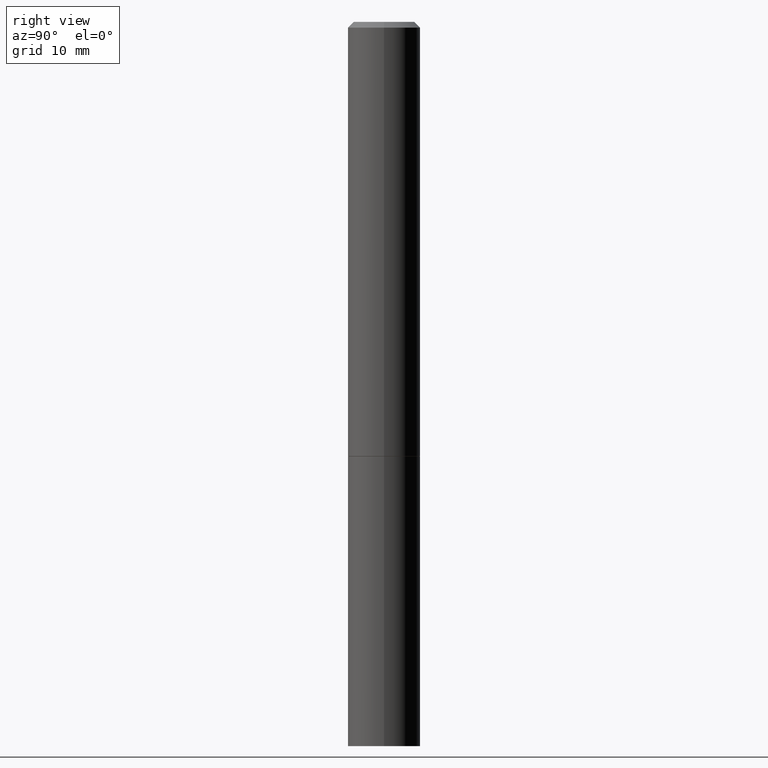
[diagram: clean part render]
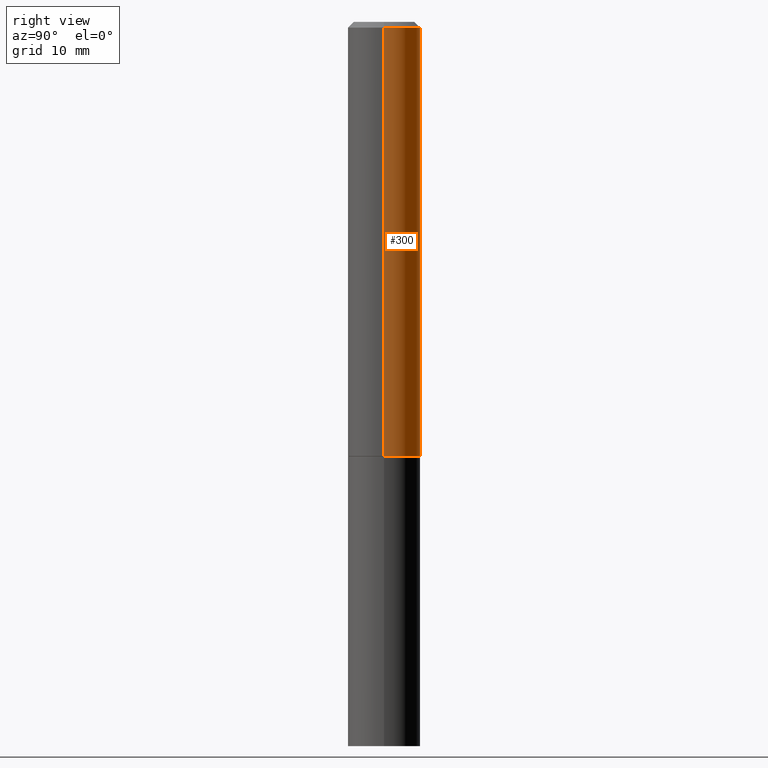
[diagram: same view with one face highlighted and labeled with its STEP entity id]
A machine part, right view. The second image highlights one B-rep face of the part: STEP entity #300.
In plain terms, the highlighted cylindrical surface (edge-blend (fillet) strip) has radius 3.175 mm, axis along (-0, 0, 1).
Its self-contained STEP definition (entity closure, byte-faithful):
#16 = VERTEX_POINT ( 'NONE', #129 ) ;
#18 = ORIENTED_EDGE ( 'NONE', *, *, #357, .F. ) ;
#24 = DIRECTION ( 'NONE',  ( -2.445468806185136877E-29, 3.491481338843145188E-15, 1.000000000000000000 ) ) ;
#32 = EDGE_LOOP ( 'NONE', ( #151, #322, #18, #85 ) ) ;
#50 = CARTESIAN_POINT ( 'NONE',  ( 3.665757740471519853E-29, -5.233730526925875958E-15, -1.499000000000000110 ) ) ;
#55 = FACE_OUTER_BOUND ( 'NONE', #32, .T. ) ;
#60 = VERTEX_POINT ( 'NONE', #156 ) ;
#84 = DIRECTION ( 'NONE',  ( -2.445468806185136597E-29, 3.491481338843145583E-15, 1.000000000000000000 ) ) ;
#85 = ORIENTED_EDGE ( 'NONE', *, *, #271, .F. ) ;
#86 = CYLINDRICAL_SURFACE ( 'NONE', #362, 0.1249999999999999029 ) ;
#90 = VERTEX_POINT ( 'NONE', #149 ) ;
#99 = CIRCLE ( 'NONE', #245, 0.1250000000000000000 ) ;
#100 = EDGE_CURVE ( 'NONE', #60, #126, #99, .T. ) ;
#120 = DIRECTION ( 'NONE',  ( -2.445468806185136597E-29, 3.491481338843145583E-15, 1.000000000000000000 ) ) ;
#126 = VERTEX_POINT ( 'NONE', #308 ) ;
#129 = CARTESIAN_POINT ( 'NONE',  ( 0.1249999999999998057, -9.273918764983031658E-16, -0.02000000000000004552 ) ) ;
#130 = VECTOR ( 'NONE', #24, 39.37007874015748143 ) ;
#149 = CARTESIAN_POINT ( 'NONE',  ( -0.1249999999999998057, 8.030407079339189559E-16, -0.02000000000000004552 ) ) ;
#151 = ORIENTED_EDGE ( 'NONE', *, *, #100, .T. ) ;
#156 = CARTESIAN_POINT ( 'NONE',  ( 0.1250000000000000000, -6.106600861636658508E-15, -1.499000000000000110 ) ) ;
#157 = LINE ( 'NONE', #279, #191 ) ;
#174 = DIRECTION ( 'NONE',  ( 1.000000000000000000, -6.982962677686267499E-15, 0.000000000000000000 ) ) ;
#191 = VECTOR ( 'NONE', #281, 39.37007874015748143 ) ;
#204 = DIRECTION ( 'NONE',  ( 1.000000000000000000, -6.982962677686266711E-15, 4.876176775795935793E-29 ) ) ;
#209 = EDGE_CURVE ( 'NONE', #126, #90, #331, .T. ) ;
#217 = AXIS2_PLACEMENT_3D ( 'NONE', #316, #120, #174 ) ;
#222 = DIRECTION ( 'NONE',  ( -2.445468806185136597E-29, 3.491481338843145583E-15, 1.000000000000000000 ) ) ;
#245 = AXIS2_PLACEMENT_3D ( 'NONE', #50, #222, #327 ) ;
#262 = CARTESIAN_POINT ( 'NONE',  ( 0.000000000000000000, 0.000000000000000000, 0.000000000000000000 ) ) ;
#271 = EDGE_CURVE ( 'NONE', #60, #16, #157, .T. ) ;
#279 = CARTESIAN_POINT ( 'NONE',  ( 0.1249999999999999029, -8.728703347107826486E-16, 6.095220969744914837E-30 ) ) ;
#281 = DIRECTION ( 'NONE',  ( -2.445468806185136877E-29, 3.491481338843145188E-15, 1.000000000000000000 ) ) ;
#300 = ADVANCED_FACE ( 'NONE', ( #55 ), #86, .T. ) ;
#308 = CARTESIAN_POINT ( 'NONE',  ( -0.1250000000000000278, -1.763601657151242227E-15, -1.499000000000000110 ) ) ;
#316 = CARTESIAN_POINT ( 'NONE',  ( 4.890937612370284544E-31, -6.982962677686307633E-17, -0.02000000000000004552 ) ) ;
#322 = ORIENTED_EDGE ( 'NONE', *, *, #209, .T. ) ;
#327 = DIRECTION ( 'NONE',  ( 1.000000000000000000, -6.982962677686262766E-15, 0.000000000000000000 ) ) ;
#330 = CIRCLE ( 'NONE', #217, 0.1249999999999998057 ) ;
#331 = LINE ( 'NONE', #332, #130 ) ;
#332 = CARTESIAN_POINT ( 'NONE',  ( -0.1249999999999999029, 8.881784197001245421E-16, -6.148668862818627323E-30 ) ) ;
#357 = EDGE_CURVE ( 'NONE', #16, #90, #330, .T. ) ;
#362 = AXIS2_PLACEMENT_3D ( 'NONE', #262, #84, #204 ) ;